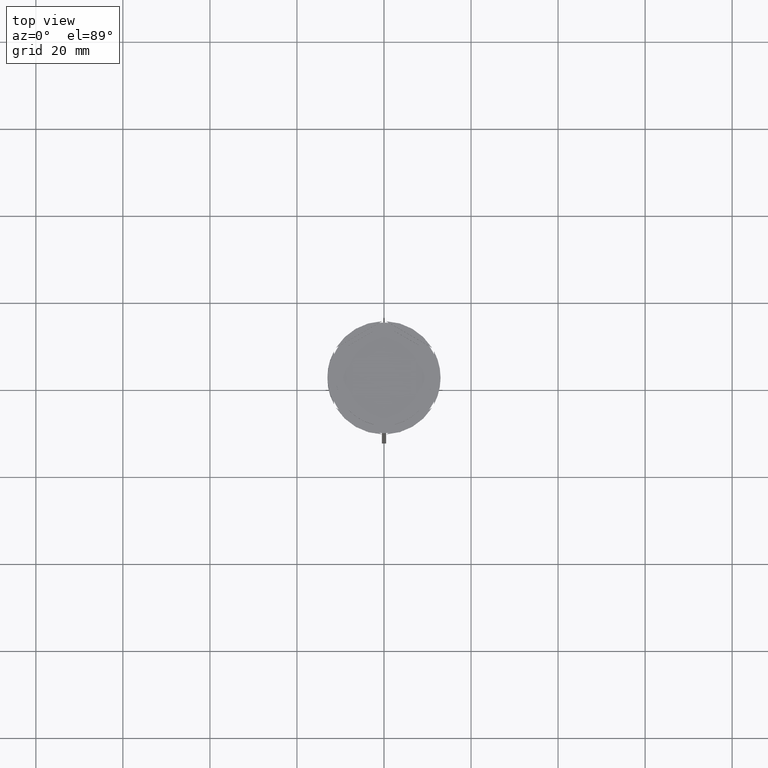
[diagram: clean part render]
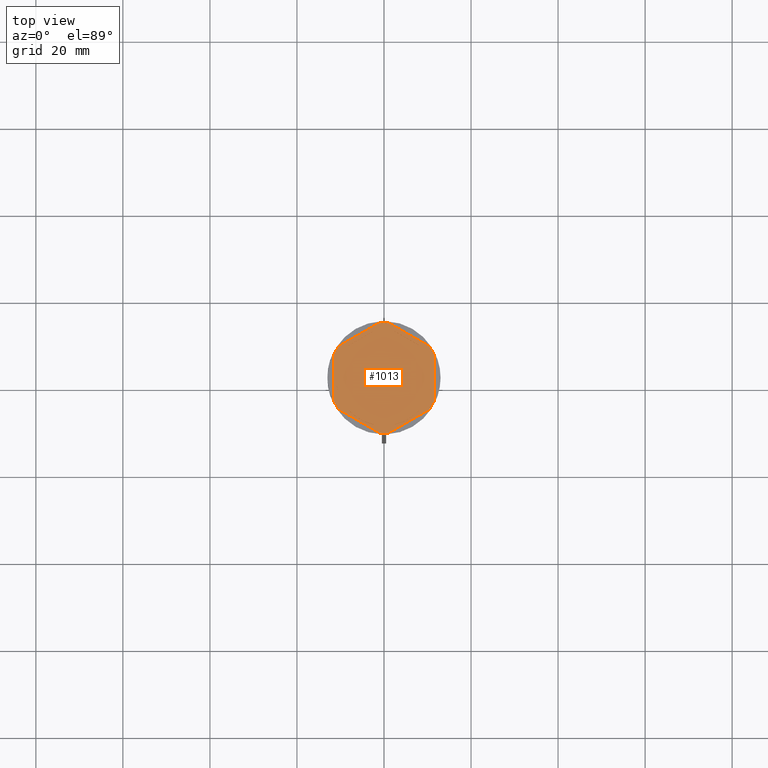
[diagram: same view with one face highlighted and labeled with its STEP entity id]
A machine part, top view. The second image highlights one B-rep face of the part: STEP entity #1013.
In plain terms, the highlighted planar face has unit normal (0, 0, 1).
Its self-contained STEP definition (entity closure, byte-faithful):
#5 = ORIENTED_EDGE ( 'NONE', *, *, #1073, .F. ) ;
#7 = EDGE_LOOP ( 'NONE', ( #1780, #1390, #93, #1851, #1122, #1974, #192, #1333, #1730, #2329, #455, #2568 ) ) ;
#10 = DIRECTION ( 'NONE',  ( 1.000000000000000000, 0.000000000000000000, 0.000000000000000000 ) ) ;
#21 = AXIS2_PLACEMENT_3D ( 'NONE', #824, #2722, #2519 ) ;
#29 = VECTOR ( 'NONE', #1636, 1000.000000000000000 ) ;
#48 = CARTESIAN_POINT ( 'NONE',  ( 11.49999999999999822, -6.639528095680694797, -1.000000000000000000 ) ) ;
#70 = DIRECTION ( 'NONE',  ( 0.000000000000000000, 0.000000000000000000, 1.000000000000000000 ) ) ;
#73 = EDGE_LOOP ( 'NONE', ( #674, #1805 ) ) ;
#93 = ORIENTED_EDGE ( 'NONE', *, *, #944, .T. ) ;
#102 = AXIS2_PLACEMENT_3D ( 'NONE', #1717, #2581, #1502 ) ;
#104 = VECTOR ( 'NONE', #884, 1000.000000000000000 ) ;
#116 = VECTOR ( 'NONE', #997, 1000.000000000000000 ) ;
#147 = EDGE_CURVE ( 'NONE', #2680, #728, #1224, .T. ) ;
#172 = CARTESIAN_POINT ( 'NONE',  ( -1.083095244168779780, -12.65373086058253982, -1.000000000000000000 ) ) ;
#180 = VERTEX_POINT ( 'NONE', #1957 ) ;
#187 = ORIENTED_EDGE ( 'NONE', *, *, #1774, .F. ) ;
#192 = ORIENTED_EDGE ( 'NONE', *, *, #2169, .T. ) ;
#195 = VERTEX_POINT ( 'NONE', #2405 ) ;
#200 = AXIS2_PLACEMENT_3D ( 'NONE', #2163, #2567, #2154 ) ;
#213 = VERTEX_POINT ( 'NONE', #2422 ) ;
#226 = DIRECTION ( 'NONE',  ( -0.8660254037844385966, -0.5000000000000001110, 0.000000000000000000 ) ) ;
#235 = LINE ( 'NONE', #48, #2720 ) ;
#249 = CIRCLE ( 'NONE', #788, 11.00000000000000000 ) ;
#257 = EDGE_LOOP ( 'NONE', ( #704, #823 ) ) ;
#262 = DIRECTION ( 'NONE',  ( -0.000000000000000000, -0.000000000000000000, -1.000000000000000000 ) ) ;
#270 = EDGE_CURVE ( 'NONE', #2538, #2627, #235, .T. ) ;
#288 = CIRCLE ( 'NONE', #1956, 12.69999999999999929 ) ;
#297 = CIRCLE ( 'NONE', #745, 12.69999999999999929 ) ;
#329 = VECTOR ( 'NONE', #817, 999.9999999999998863 ) ;
#358 = CARTESIAN_POINT ( 'NONE',  ( -10.49999999999999822, 6.062177826491068622, -1.000000000000000888 ) ) ;
#363 = VERTEX_POINT ( 'NONE', #1387 ) ;
#396 = FACE_OUTER_BOUND ( 'NONE', #7, .T. ) ;
#439 = ORIENTED_EDGE ( 'NONE', *, *, #2754, .F. ) ;
#440 = DIRECTION ( 'NONE',  ( 1.000000000000000000, -1.776356839400250465E-14, 0.000000000000000000 ) ) ;
#443 = FACE_BOUND ( 'NONE', #688, .T. ) ;
#455 = ORIENTED_EDGE ( 'NONE', *, *, #1168, .T. ) ;
#496 = EDGE_CURVE ( 'NONE', #1757, #600, #1456, .T. ) ;
#520 = CIRCLE ( 'NONE', #1603, 12.69999999999999929 ) ;
#543 = LINE ( 'NONE', #2264, #2633 ) ;
#600 = VERTEX_POINT ( 'NONE', #2157 ) ;
#603 = VECTOR ( 'NONE', #2535, 1000.000000000000000 ) ;
#605 = DIRECTION ( 'NONE',  ( 0.000000000000000000, 0.000000000000000000, 1.000000000000000000 ) ) ;
#616 = EDGE_CURVE ( 'NONE', #1838, #2040, #1077, .T. ) ;
#624 = FACE_BOUND ( 'NONE', #257, .T. ) ;
#633 = EDGE_CURVE ( 'NONE', #2285, #1898, #288, .T. ) ;
#648 = EDGE_CURVE ( 'NONE', #1876, #665, #1754, .T. ) ;
#651 = AXIS2_PLACEMENT_3D ( 'NONE', #1517, #1715, #1486 ) ;
#665 = VERTEX_POINT ( 'NONE', #1271 ) ;
#669 = PLANE ( 'NONE',  #200 ) ;
#674 = ORIENTED_EDGE ( 'NONE', *, *, #1545, .F. ) ;
#688 = EDGE_LOOP ( 'NONE', ( #886, #187 ) ) ;
#704 = ORIENTED_EDGE ( 'NONE', *, *, #1215, .F. ) ;
#714 = VERTEX_POINT ( 'NONE', #2583 ) ;
#728 = VERTEX_POINT ( 'NONE', #2127 ) ;
#744 = ORIENTED_EDGE ( 'NONE', *, *, #2132, .F. ) ;
#745 = AXIS2_PLACEMENT_3D ( 'NONE', #1536, #2395, #10 ) ;
#746 = AXIS2_PLACEMENT_3D ( 'NONE', #917, #262, #440 ) ;
#747 = DIRECTION ( 'NONE',  ( 1.000000000000000000, 0.000000000000000000, 0.000000000000000000 ) ) ;
#771 = CARTESIAN_POINT ( 'NONE',  ( 2.410545827099865868, -10.73262637081210791, -1.000000000000000888 ) ) ;
#784 = CARTESIAN_POINT ( 'NONE',  ( 0.000000000000000000, 0.000000000000000000, -1.000000000000000000 ) ) ;
#788 = AXIS2_PLACEMENT_3D ( 'NONE', #2009, #70, #747 ) ;
#812 = DIRECTION ( 'NONE',  ( -0.8660254037844387076, -0.4999999999999999445, 0.000000000000000000 ) ) ;
#817 = DIRECTION ( 'NONE',  ( 0.8660254037844387076, -0.4999999999999999445, 0.000000000000000000 ) ) ;
#818 = FACE_BOUND ( 'NONE', #73, .T. ) ;
#823 = ORIENTED_EDGE ( 'NONE', *, *, #616, .F. ) ;
#824 = CARTESIAN_POINT ( 'NONE',  ( 0.000000000000000000, 0.000000000000000000, -1.000000000000000000 ) ) ;
#830 = CIRCLE ( 'NONE', #21, 11.00000000000000000 ) ;
#834 = LINE ( 'NONE', #1925, #116 ) ;
#884 = DIRECTION ( 'NONE',  ( -0.8660254037844384856, 0.5000000000000002220, 0.000000000000000000 ) ) ;
#886 = ORIENTED_EDGE ( 'NONE', *, *, #1096, .F. ) ;
#897 = CARTESIAN_POINT ( 'NONE',  ( 0.000000000000000000, 13.27905619136138959, -1.000000000000000000 ) ) ;
#900 = VERTEX_POINT ( 'NONE', #2513 ) ;
#917 = CARTESIAN_POINT ( 'NONE',  ( 0.000000000000000000, 0.000000000000000000, -1.000000000000000000 ) ) ;
#924 = VECTOR ( 'NONE', #812, 999.9999999999998863 ) ;
#928 = CARTESIAN_POINT ( 'NONE',  ( -8.089454172900133244, -7.453907108661111280, -1.000000000000000888 ) ) ;
#944 = EDGE_CURVE ( 'NONE', #195, #2625, #543, .T. ) ;
#997 = DIRECTION ( 'NONE',  ( 0.000000000000000000, -1.000000000000000000, 0.000000000000000000 ) ) ;
#1001 = CARTESIAN_POINT ( 'NONE',  ( 11.49999999999999822, -5.388877434122996135, -1.000000000000000000 ) ) ;
#1012 = CIRCLE ( 'NONE', #1055, 11.00000000000000000 ) ;
#1013 = ADVANCED_FACE ( 'NONE', ( #1940, #1474, #443, #624, #1044, #818, #396 ), #669, .T. ) ;
#1044 = FACE_BOUND ( 'NONE', #2283, .T. ) ;
#1050 = CARTESIAN_POINT ( 'NONE',  ( -10.49999999999999822, -6.062177826491068622, -1.000000000000000888 ) ) ;
#1055 = AXIS2_PLACEMENT_3D ( 'NONE', #2757, #2138, #1086 ) ;
#1073 = EDGE_CURVE ( 'NONE', #714, #2174, #2682, .T. ) ;
#1077 = LINE ( 'NONE', #1050, #104 ) ;
#1086 = DIRECTION ( 'NONE',  ( 1.000000000000000000, 0.000000000000000000, 0.000000000000000000 ) ) ;
#1095 = EDGE_CURVE ( 'NONE', #2285, #2641, #1927, .T. ) ;
#1096 = EDGE_CURVE ( 'NONE', #1480, #363, #1012, .T. ) ;
#1098 = AXIS2_PLACEMENT_3D ( 'NONE', #1789, #1386, #1540 ) ;
#1122 = ORIENTED_EDGE ( 'NONE', *, *, #648, .T. ) ;
#1152 = CARTESIAN_POINT ( 'NONE',  ( -11.50000000000000000, 5.388877434122992582, -1.000000000000000000 ) ) ;
#1155 = AXIS2_PLACEMENT_3D ( 'NONE', #1619, #1397, #2056 ) ;
#1168 = EDGE_CURVE ( 'NONE', #213, #180, #2220, .T. ) ;
#1215 = EDGE_CURVE ( 'NONE', #2040, #1838, #2318, .T. ) ;
#1224 = CIRCLE ( 'NONE', #102, 11.00000000000000000 ) ;
#1231 = VECTOR ( 'NONE', #1772, 1000.000000000000114 ) ;
#1235 = AXIS2_PLACEMENT_3D ( 'NONE', #1853, #2559, #1464 ) ;
#1258 = DIRECTION ( 'NONE',  ( -0.000000000000000000, -0.000000000000000000, -1.000000000000000000 ) ) ;
#1260 = LINE ( 'NONE', #2520, #924 ) ;
#1271 = CARTESIAN_POINT ( 'NONE',  ( -10.41690475583121689, 7.264853426459546348, -1.000000000000000000 ) ) ;
#1278 = CIRCLE ( 'NONE', #1235, 12.69999999999999929 ) ;
#1280 = EDGE_CURVE ( 'NONE', #1312, #714, #1870, .T. ) ;
#1284 = CARTESIAN_POINT ( 'NONE',  ( 10.49999999999999467, 6.062177826491072175, -1.000000000000000888 ) ) ;
#1287 = CIRCLE ( 'NONE', #1155, 12.69999999999999929 ) ;
#1301 = EDGE_LOOP ( 'NONE', ( #2005, #744 ) ) ;
#1312 = VERTEX_POINT ( 'NONE', #2702 ) ;
#1328 = CIRCLE ( 'NONE', #746, 12.69999999999999929 ) ;
#1331 = AXIS2_PLACEMENT_3D ( 'NONE', #1895, #605, #1496 ) ;
#1333 = ORIENTED_EDGE ( 'NONE', *, *, #633, .F. ) ;
#1386 = DIRECTION ( 'NONE',  ( 0.000000000000000000, 0.000000000000000000, 1.000000000000000000 ) ) ;
#1387 = CARTESIAN_POINT ( 'NONE',  ( 8.089454172900135021, -7.453907108661109504, -1.000000000000000888 ) ) ;
#1390 = ORIENTED_EDGE ( 'NONE', *, *, #2305, .F. ) ;
#1397 = DIRECTION ( 'NONE',  ( -0.000000000000000000, -0.000000000000000000, -1.000000000000000000 ) ) ;
#1412 = CARTESIAN_POINT ( 'NONE',  ( 10.49999999999999467, -3.278719262151014835, -1.000000000000000888 ) ) ;
#1440 = CARTESIAN_POINT ( 'NONE',  ( 1.083095244168781557, 12.65373086058254160, -1.000000000000000000 ) ) ;
#1441 = EDGE_CURVE ( 'NONE', #2077, #665, #520, .T. ) ;
#1449 = DIRECTION ( 'NONE',  ( 1.000000000000000000, 0.000000000000000000, 0.000000000000000000 ) ) ;
#1456 = LINE ( 'NONE', #1284, #329 ) ;
#1457 = VECTOR ( 'NONE', #226, 1000.000000000000114 ) ;
#1464 = DIRECTION ( 'NONE',  ( 1.000000000000000000, 0.000000000000000000, 0.000000000000000000 ) ) ;
#1474 = FACE_BOUND ( 'NONE', #1301, .T. ) ;
#1480 = VERTEX_POINT ( 'NONE', #771 ) ;
#1486 = DIRECTION ( 'NONE',  ( 1.000000000000000000, 0.000000000000000000, 0.000000000000000000 ) ) ;
#1495 = EDGE_CURVE ( 'NONE', #213, #2641, #1278, .T. ) ;
#1496 = DIRECTION ( 'NONE',  ( 1.000000000000000000, 0.000000000000000000, 0.000000000000000000 ) ) ;
#1497 = DIRECTION ( 'NONE',  ( -1.430775808321104180E-16, -1.000000000000000000, 0.000000000000000000 ) ) ;
#1502 = DIRECTION ( 'NONE',  ( 1.000000000000000000, 0.000000000000000000, 0.000000000000000000 ) ) ;
#1517 = CARTESIAN_POINT ( 'NONE',  ( 0.000000000000000000, 0.000000000000000000, -1.000000000000000000 ) ) ;
#1536 = CARTESIAN_POINT ( 'NONE',  ( 0.000000000000000000, 0.000000000000000000, -1.000000000000000000 ) ) ;
#1540 = DIRECTION ( 'NONE',  ( 1.000000000000000000, 0.000000000000000000, 0.000000000000000000 ) ) ;
#1545 = EDGE_CURVE ( 'NONE', #2518, #900, #830, .T. ) ;
#1577 = DIRECTION ( 'NONE',  ( 1.306360520641008153E-16, 1.000000000000000000, 0.000000000000000000 ) ) ;
#1603 = AXIS2_PLACEMENT_3D ( 'NONE', #784, #2067, #1449 ) ;
#1606 = CARTESIAN_POINT ( 'NONE',  ( 5.612359739892467248E-18, -13.27905619136138959, -1.000000000000000000 ) ) ;
#1619 = CARTESIAN_POINT ( 'NONE',  ( 0.000000000000000000, 0.000000000000000000, -1.000000000000000000 ) ) ;
#1636 = DIRECTION ( 'NONE',  ( 0.8660254037844385966, 0.5000000000000001110, -0.000000000000000000 ) ) ;
#1658 = CARTESIAN_POINT ( 'NONE',  ( 2.410545827099861871, 10.73262637081210791, -1.000000000000000888 ) ) ;
#1676 = EDGE_CURVE ( 'NONE', #600, #1757, #249, .T. ) ;
#1715 = DIRECTION ( 'NONE',  ( 0.000000000000000000, 0.000000000000000000, 1.000000000000000000 ) ) ;
#1717 = CARTESIAN_POINT ( 'NONE',  ( 0.000000000000000000, 0.000000000000000000, -1.000000000000000000 ) ) ;
#1730 = ORIENTED_EDGE ( 'NONE', *, *, #1095, .T. ) ;
#1733 = CARTESIAN_POINT ( 'NONE',  ( 0.000000000000000000, 0.000000000000000000, -1.000000000000000000 ) ) ;
#1746 = CARTESIAN_POINT ( 'NONE',  ( -10.41690475583121334, -7.264853426459548125, -1.000000000000000000 ) ) ;
#1754 = LINE ( 'NONE', #897, #1457 ) ;
#1756 = CARTESIAN_POINT ( 'NONE',  ( -1.083095244168783333, 12.65373086058254160, -1.000000000000000000 ) ) ;
#1757 = VERTEX_POINT ( 'NONE', #1658 ) ;
#1772 = DIRECTION ( 'NONE',  ( 0.8660254037844385966, 0.4999999999999999445, 0.000000000000000000 ) ) ;
#1774 = EDGE_CURVE ( 'NONE', #363, #1480, #1260, .T. ) ;
#1780 = ORIENTED_EDGE ( 'NONE', *, *, #270, .T. ) ;
#1789 = CARTESIAN_POINT ( 'NONE',  ( 0.000000000000000000, 0.000000000000000000, -1.000000000000000000 ) ) ;
#1805 = ORIENTED_EDGE ( 'NONE', *, *, #2219, .F. ) ;
#1838 = VERTEX_POINT ( 'NONE', #2079 ) ;
#1851 = ORIENTED_EDGE ( 'NONE', *, *, #2723, .F. ) ;
#1853 = CARTESIAN_POINT ( 'NONE',  ( 0.000000000000000000, 0.000000000000000000, -1.000000000000000000 ) ) ;
#1862 = CARTESIAN_POINT ( 'NONE',  ( -11.00000000000000000, 0.000000000000000000, -1.000000000000000000 ) ) ;
#1870 = LINE ( 'NONE', #358, #603 ) ;
#1876 = VERTEX_POINT ( 'NONE', #1756 ) ;
#1895 = CARTESIAN_POINT ( 'NONE',  ( 0.000000000000000000, 0.000000000000000000, -1.000000000000000000 ) ) ;
#1898 = VERTEX_POINT ( 'NONE', #2616 ) ;
#1925 = CARTESIAN_POINT ( 'NONE',  ( -11.50000000000000000, 6.639528095680691244, -1.000000000000000000 ) ) ;
#1927 = LINE ( 'NONE', #2359, #1960 ) ;
#1928 = EDGE_CURVE ( 'NONE', #2538, #180, #297, .T. ) ;
#1940 = FACE_BOUND ( 'NONE', #1979, .T. ) ;
#1956 = AXIS2_PLACEMENT_3D ( 'NONE', #1733, #1258, #2380 ) ;
#1957 = CARTESIAN_POINT ( 'NONE',  ( 10.41690475583121867, -7.264853426459537467, -1.000000000000000000 ) ) ;
#1960 = VECTOR ( 'NONE', #2610, 1000.000000000000227 ) ;
#1974 = ORIENTED_EDGE ( 'NONE', *, *, #1441, .F. ) ;
#1979 = EDGE_LOOP ( 'NONE', ( #2676, #2613 ) ) ;
#2005 = ORIENTED_EDGE ( 'NONE', *, *, #147, .F. ) ;
#2009 = CARTESIAN_POINT ( 'NONE',  ( 0.000000000000000000, 0.000000000000000000, -1.000000000000000000 ) ) ;
#2040 = VERTEX_POINT ( 'NONE', #928 ) ;
#2056 = DIRECTION ( 'NONE',  ( 1.000000000000000000, 1.243449787580175325E-14, 0.000000000000000000 ) ) ;
#2059 = VECTOR ( 'NONE', #1497, 1000.000000000000000 ) ;
#2064 = CARTESIAN_POINT ( 'NONE',  ( -1.734723475976807094E-15, 12.12435565298214080, -1.000000000000000888 ) ) ;
#2067 = DIRECTION ( 'NONE',  ( -0.000000000000000000, -0.000000000000000000, -1.000000000000000000 ) ) ;
#2070 = CARTESIAN_POINT ( 'NONE',  ( 11.49999999999999822, 5.388877434122992582, -1.000000000000000000 ) ) ;
#2077 = VERTEX_POINT ( 'NONE', #1152 ) ;
#2079 = CARTESIAN_POINT ( 'NONE',  ( -2.410545827099876082, -10.73262637081210435, -1.000000000000000888 ) ) ;
#2127 = CARTESIAN_POINT ( 'NONE',  ( 10.49999999999999467, 3.278719262151012170, -1.000000000000000888 ) ) ;
#2132 = EDGE_CURVE ( 'NONE', #728, #2680, #2667, .T. ) ;
#2138 = DIRECTION ( 'NONE',  ( 0.000000000000000000, 0.000000000000000000, 1.000000000000000000 ) ) ;
#2154 = DIRECTION ( 'NONE',  ( 1.000000000000000000, 0.000000000000000000, -0.000000000000000000 ) ) ;
#2157 = CARTESIAN_POINT ( 'NONE',  ( 8.089454172900138573, 7.453907108661105063, -1.000000000000000888 ) ) ;
#2163 = CARTESIAN_POINT ( 'NONE',  ( 0.000000000000000000, 0.000000000000000000, -1.000000000000000000 ) ) ;
#2169 = EDGE_CURVE ( 'NONE', #2077, #1898, #834, .T. ) ;
#2174 = VERTEX_POINT ( 'NONE', #1862 ) ;
#2219 = EDGE_CURVE ( 'NONE', #900, #2518, #2516, .T. ) ;
#2220 = LINE ( 'NONE', #1606, #1231 ) ;
#2247 = ORIENTED_EDGE ( 'NONE', *, *, #1280, .F. ) ;
#2264 = CARTESIAN_POINT ( 'NONE',  ( 11.50000000000000000, 6.639528095680698350, -1.000000000000000000 ) ) ;
#2283 = EDGE_LOOP ( 'NONE', ( #5, #2247, #439 ) ) ;
#2285 = VERTEX_POINT ( 'NONE', #1746 ) ;
#2305 = EDGE_CURVE ( 'NONE', #195, #2627, #1328, .T. ) ;
#2318 = CIRCLE ( 'NONE', #1098, 11.00000000000000000 ) ;
#2329 = ORIENTED_EDGE ( 'NONE', *, *, #1495, .F. ) ;
#2359 = CARTESIAN_POINT ( 'NONE',  ( -11.50000000000000000, -6.639528095680696573, -1.000000000000000000 ) ) ;
#2380 = DIRECTION ( 'NONE',  ( 1.000000000000000000, 7.105427357601001859E-15, 0.000000000000000000 ) ) ;
#2395 = DIRECTION ( 'NONE',  ( -0.000000000000000000, -0.000000000000000000, -1.000000000000000000 ) ) ;
#2405 = CARTESIAN_POINT ( 'NONE',  ( 10.41690475583121156, 7.264853426459550789, -1.000000000000000000 ) ) ;
#2422 = CARTESIAN_POINT ( 'NONE',  ( 1.083095244168774673, -12.65373086058253982, -1.000000000000000000 ) ) ;
#2455 = CARTESIAN_POINT ( 'NONE',  ( 10.49999999999999289, -6.062177826491073063, -1.000000000000000888 ) ) ;
#2513 = CARTESIAN_POINT ( 'NONE',  ( -8.089454172900135021, 7.453907108661106840, -1.000000000000000888 ) ) ;
#2516 = LINE ( 'NONE', #2064, #29 ) ;
#2518 = VERTEX_POINT ( 'NONE', #2700 ) ;
#2519 = DIRECTION ( 'NONE',  ( 1.000000000000000000, 0.000000000000000000, 0.000000000000000000 ) ) ;
#2520 = CARTESIAN_POINT ( 'NONE',  ( -2.602085213965210642E-15, -12.12435565298214080, -1.000000000000000888 ) ) ;
#2535 = DIRECTION ( 'NONE',  ( 0.000000000000000000, 1.000000000000000000, 0.000000000000000000 ) ) ;
#2538 = VERTEX_POINT ( 'NONE', #1001 ) ;
#2559 = DIRECTION ( 'NONE',  ( -0.000000000000000000, -0.000000000000000000, -1.000000000000000000 ) ) ;
#2567 = DIRECTION ( 'NONE',  ( 0.000000000000000000, 0.000000000000000000, 1.000000000000000000 ) ) ;
#2568 = ORIENTED_EDGE ( 'NONE', *, *, #1928, .F. ) ;
#2581 = DIRECTION ( 'NONE',  ( 0.000000000000000000, 0.000000000000000000, 1.000000000000000000 ) ) ;
#2583 = CARTESIAN_POINT ( 'NONE',  ( -10.49999999999999822, 3.278719262151000624, -1.000000000000000888 ) ) ;
#2610 = DIRECTION ( 'NONE',  ( 0.8660254037844387076, -0.4999999999999997780, 0.000000000000000000 ) ) ;
#2613 = ORIENTED_EDGE ( 'NONE', *, *, #496, .F. ) ;
#2616 = CARTESIAN_POINT ( 'NONE',  ( -11.50000000000000000, -5.388877434122992582, -1.000000000000000000 ) ) ;
#2625 = VERTEX_POINT ( 'NONE', #1440 ) ;
#2627 = VERTEX_POINT ( 'NONE', #2070 ) ;
#2633 = VECTOR ( 'NONE', #2746, 1000.000000000000000 ) ;
#2641 = VERTEX_POINT ( 'NONE', #172 ) ;
#2667 = LINE ( 'NONE', #2455, #2059 ) ;
#2676 = ORIENTED_EDGE ( 'NONE', *, *, #1676, .F. ) ;
#2680 = VERTEX_POINT ( 'NONE', #1412 ) ;
#2682 = CIRCLE ( 'NONE', #651, 11.00000000000000000 ) ;
#2700 = CARTESIAN_POINT ( 'NONE',  ( -2.410545827099867200, 10.73262637081210613, -1.000000000000000888 ) ) ;
#2702 = CARTESIAN_POINT ( 'NONE',  ( -10.49999999999999822, -3.278719262151000624, -1.000000000000000888 ) ) ;
#2720 = VECTOR ( 'NONE', #1577, 1000.000000000000000 ) ;
#2722 = DIRECTION ( 'NONE',  ( 0.000000000000000000, 0.000000000000000000, 1.000000000000000000 ) ) ;
#2723 = EDGE_CURVE ( 'NONE', #1876, #2625, #1287, .T. ) ;
#2737 = CIRCLE ( 'NONE', #1331, 11.00000000000000000 ) ;
#2746 = DIRECTION ( 'NONE',  ( -0.8660254037844388186, 0.4999999999999997224, 0.000000000000000000 ) ) ;
#2754 = EDGE_CURVE ( 'NONE', #2174, #1312, #2737, .T. ) ;
#2757 = CARTESIAN_POINT ( 'NONE',  ( 0.000000000000000000, 0.000000000000000000, -1.000000000000000000 ) ) ;